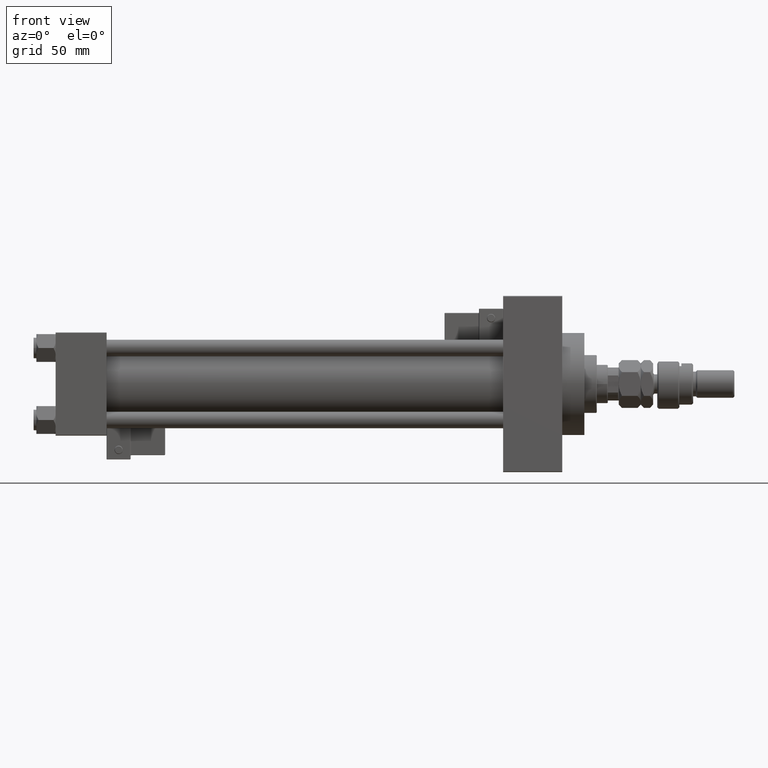
[diagram: clean part render]
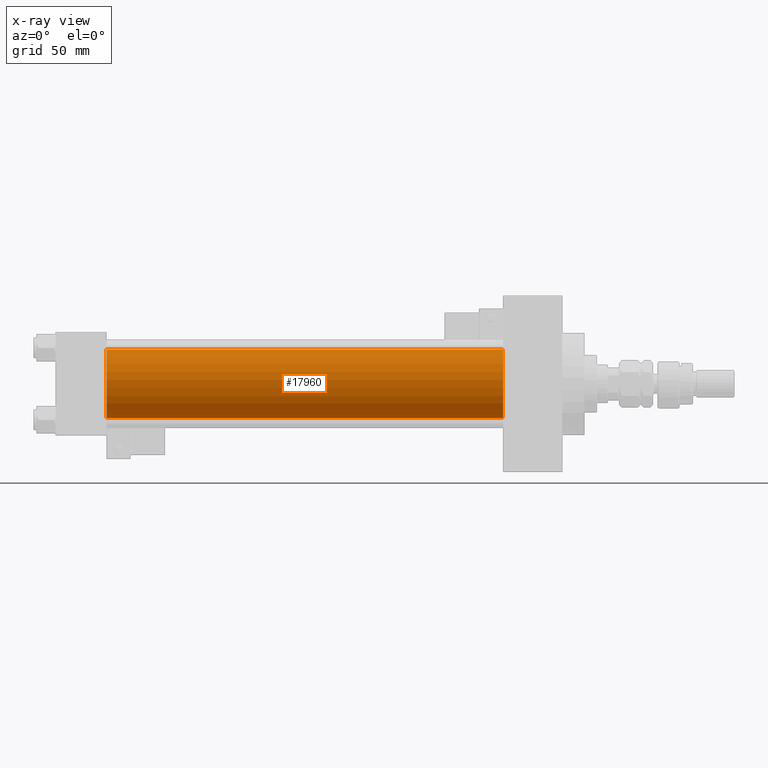
[diagram: x-ray — body ghosted, one internal face saturated and labeled with its STEP entity id]
A machine part, front view, then the same camera in x-ray: the body is ghosted and one INTERNAL B-rep face — a face not visible from any outside direction — is saturated and labeled: STEP entity #17960.
In plain terms, the highlighted cylindrical surface (edge-blend (fillet) strip) has radius 25 mm, axis along (-1, -0, -0).
Its self-contained STEP definition (entity closure, byte-faithful):
#1561 = DIRECTION ( 'NONE',  ( 1.000000000000000000, 0.000000000000000000, 0.000000000000000000 ) ) ;
#3849 = CARTESIAN_POINT ( 'NONE',  ( 37.00000000000000000, 4.595317839031724996E-16, -25.00000000000000000 ) ) ;
#4226 = VERTEX_POINT ( 'NONE', #13158 ) ;
#4264 = DIRECTION ( 'NONE',  ( -1.000000000000000000, -0.000000000000000000, -0.000000000000000000 ) ) ;
#6102 = CARTESIAN_POINT ( 'NONE',  ( 324.9999999999999432, -2.602085213965210642E-15, 0.000000000000000000 ) ) ;
#6780 = CARTESIAN_POINT ( 'NONE',  ( 37.00000000000000000, -2.602085213965210642E-15, 0.000000000000000000 ) ) ;
#7533 = EDGE_CURVE ( 'NONE', #34186, #23928, #38274, .T. ) ;
#7989 = EDGE_LOOP ( 'NONE', ( #22187, #17599, #33674, #19389 ) ) ;
#8712 = EDGE_CURVE ( 'NONE', #4226, #34186, #25717, .T. ) ;
#12945 = AXIS2_PLACEMENT_3D ( 'NONE', #6102, #39626, #15154 ) ;
#13158 = CARTESIAN_POINT ( 'NONE',  ( 324.9999999999999432, -2.602085213965210642E-15, 25.00000000000000000 ) ) ;
#14575 = AXIS2_PLACEMENT_3D ( 'NONE', #6780, #1561, #14742 ) ;
#14604 = CYLINDRICAL_SURFACE ( 'NONE', #12945, 25.00000000000000000 ) ;
#14677 = DIRECTION ( 'NONE',  ( -1.000000000000000000, -0.000000000000000000, -0.000000000000000000 ) ) ;
#14742 = DIRECTION ( 'NONE',  ( 0.000000000000000000, 0.000000000000000000, -1.000000000000000000 ) ) ;
#15057 = VECTOR ( 'NONE', #14677, 1000.000000000000000 ) ;
#15154 = DIRECTION ( 'NONE',  ( 0.000000000000000000, 0.000000000000000000, 1.000000000000000000 ) ) ;
#17599 = ORIENTED_EDGE ( 'NONE', *, *, #43594, .T. ) ;
#17865 = AXIS2_PLACEMENT_3D ( 'NONE', #24413, #24936, #49692 ) ;
#17960 = ADVANCED_FACE ( 'NONE', ( #47609 ), #14604, .F. ) ;
#19389 = ORIENTED_EDGE ( 'NONE', *, *, #8712, .F. ) ;
#22187 = ORIENTED_EDGE ( 'NONE', *, *, #48313, .T. ) ;
#23928 = VERTEX_POINT ( 'NONE', #3849 ) ;
#24413 = CARTESIAN_POINT ( 'NONE',  ( 324.9999999999999432, -2.602085213965210642E-15, 0.000000000000000000 ) ) ;
#24936 = DIRECTION ( 'NONE',  ( 1.000000000000000000, 0.000000000000000000, 0.000000000000000000 ) ) ;
#25084 = CARTESIAN_POINT ( 'NONE',  ( 324.9999999999999432, 4.595317839031724996E-16, -25.00000000000000000 ) ) ;
#25717 = LINE ( 'NONE', #42205, #51499 ) ;
#31183 = CARTESIAN_POINT ( 'NONE',  ( 324.9999999999999432, 4.595317839031724996E-16, -25.00000000000000000 ) ) ;
#33674 = ORIENTED_EDGE ( 'NONE', *, *, #7533, .F. ) ;
#34186 = VERTEX_POINT ( 'NONE', #39136 ) ;
#38060 = CIRCLE ( 'NONE', #17865, 25.00000000000000000 ) ;
#38274 = CIRCLE ( 'NONE', #14575, 25.00000000000000000 ) ;
#39136 = CARTESIAN_POINT ( 'NONE',  ( 37.00000000000000000, -2.602085213965210642E-15, 25.00000000000000000 ) ) ;
#39626 = DIRECTION ( 'NONE',  ( -1.000000000000000000, -0.000000000000000000, -0.000000000000000000 ) ) ;
#42205 = CARTESIAN_POINT ( 'NONE',  ( 324.9999999999999432, -2.602085213965210642E-15, 25.00000000000000000 ) ) ;
#43565 = LINE ( 'NONE', #31183, #15057 ) ;
#43594 = EDGE_CURVE ( 'NONE', #47994, #23928, #43565, .T. ) ;
#47609 = FACE_OUTER_BOUND ( 'NONE', #7989, .T. ) ;
#47994 = VERTEX_POINT ( 'NONE', #25084 ) ;
#48313 = EDGE_CURVE ( 'NONE', #4226, #47994, #38060, .T. ) ;
#49692 = DIRECTION ( 'NONE',  ( 0.000000000000000000, 0.000000000000000000, -1.000000000000000000 ) ) ;
#51499 = VECTOR ( 'NONE', #4264, 1000.000000000000000 ) ;